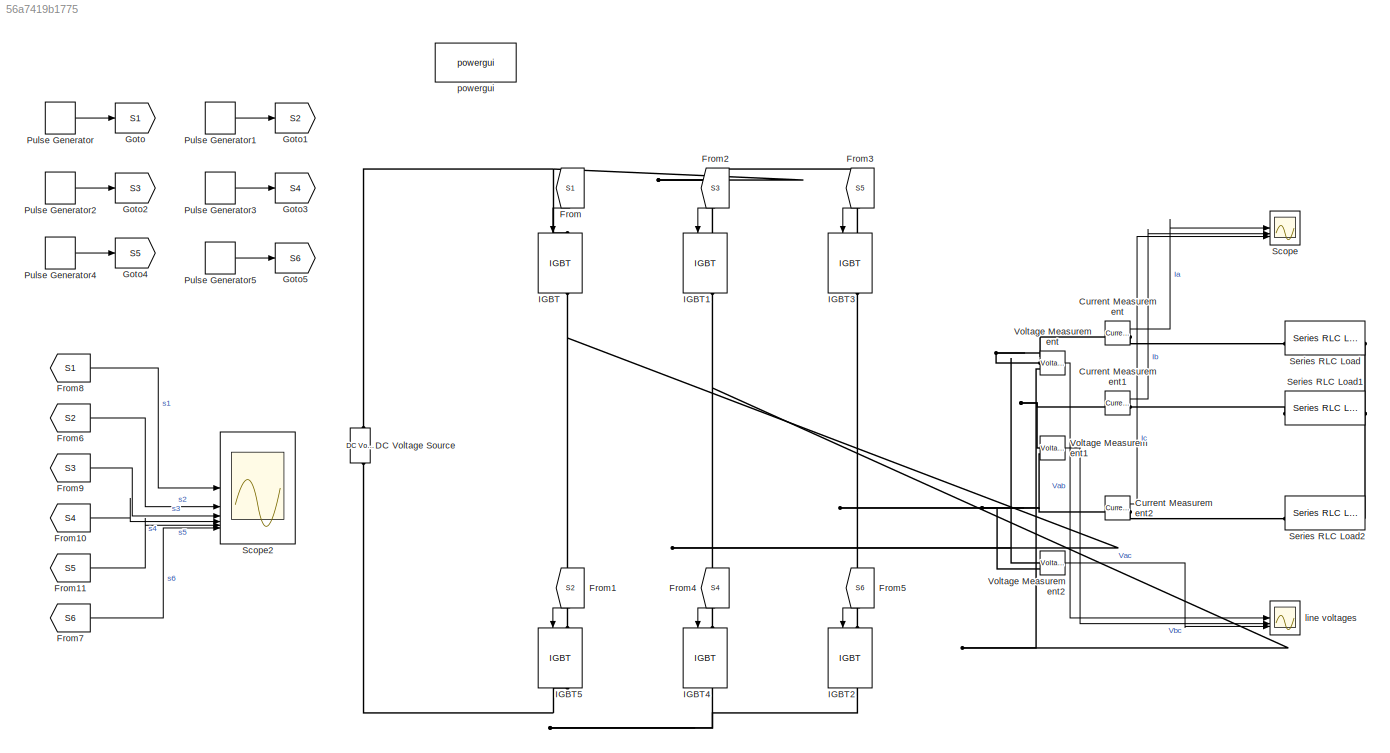
MODEL slx_56a7419b1775
KIND model
CONFIG AbsTol = auto
CONFIG EnableMultiTasking = off
CONFIG FixedStep = 10e-6
CONFIG MaxStep = auto
CONFIG MinStep = auto
CONFIG RelTol = 1e-3
CONFIG SampleTimeConstraint = Unconstrained
CONFIG SolverName = ode3
CONFIG StartTime = 0.0
CONFIG StopTime = 0.4
WORKSPACE source: mxarray member
WORKSPACE pulse_generator_period = 0.02
BLOCK [Reference] Current Measurement  REF=spsCurrentMeasurementLib/Current Measurement
  LibrarySourceBlock = sps_lib/Sensors and Measurements/Current Measurement
  SourceBlock = spsCurrentMeasurementLib/Current Measurement
  SourceType = Current Measurement
  UserDataPersistent = on
BLOCK [Reference] Current Measurement1  REF=spsCurrentMeasurementLib/Current Measurement
  LibrarySourceBlock = sps_lib/Sensors and Measurements/Current Measurement
  SourceBlock = spsCurrentMeasurementLib/Current Measurement
  SourceType = Current Measurement
  UserDataPersistent = on
BLOCK [Reference] Current Measurement2  REF=spsCurrentMeasurementLib/Current Measurement
  LibrarySourceBlock = sps_lib/Sensors and Measurements/Current Measurement
  SourceBlock = spsCurrentMeasurementLib/Current Measurement
  SourceType = Current Measurement
  UserDataPersistent = on
BLOCK [Reference] DC Voltage Source  REF=spsDCVoltageSourceLib/DC Voltage Source
  LibrarySourceBlock = sps_lib/Sources/DC Voltage Source
  SourceBlock = spsDCVoltageSourceLib/DC Voltage Source
  SourceType = DC Voltage Source
BLOCK [From] From
  GotoTag = S1
  NameLocation = left
BLOCK [From] From1
  GotoTag = S2
  NameLocation = left
BLOCK [From] From10
  GotoTag = S4
BLOCK [From] From11
  GotoTag = S5
BLOCK [From] From2
  GotoTag = S3
  NameLocation = left
BLOCK [From] From3
  GotoTag = S5
  NameLocation = left
BLOCK [From] From4
  GotoTag = S4
  NameLocation = left
BLOCK [From] From5
  GotoTag = S6
  NameLocation = left
BLOCK [From] From6
  GotoTag = S2
BLOCK [From] From7
  GotoTag = S6
BLOCK [From] From8
  GotoTag = S1
BLOCK [From] From9
  GotoTag = S3
BLOCK [Goto] Goto
  GotoTag = S1
BLOCK [Goto] Goto1
  GotoTag = S2
BLOCK [Goto] Goto2
  GotoTag = S3
BLOCK [Goto] Goto3
  GotoTag = S4
BLOCK [Goto] Goto4
  GotoTag = S5
BLOCK [Goto] Goto5
  GotoTag = S6
BLOCK [Reference] IGBT  REF=spsIGBTLib/IGBT
  LibrarySourceBlock = sps_lib/Power Electronics/IGBT
  NameLocation = left
  SourceBlock = spsIGBTLib/IGBT
  SourceType = IGBT
BLOCK [Reference] IGBT1  REF=spsIGBTLib/IGBT
  LibrarySourceBlock = sps_lib/Power Electronics/IGBT
  NameLocation = left
  SourceBlock = spsIGBTLib/IGBT
  SourceType = IGBT
BLOCK [Reference] IGBT2  REF=spsIGBTLib/IGBT
  LibrarySourceBlock = sps_lib/Power Electronics/IGBT
  NameLocation = left
  SourceBlock = spsIGBTLib/IGBT
  SourceType = IGBT
BLOCK [Reference] IGBT3  REF=spsIGBTLib/IGBT
  LibrarySourceBlock = sps_lib/Power Electronics/IGBT
  NameLocation = left
  SourceBlock = spsIGBTLib/IGBT
  SourceType = IGBT
BLOCK [Reference] IGBT4  REF=spsIGBTLib/IGBT
  LibrarySourceBlock = sps_lib/Power Electronics/IGBT
  NameLocation = left
  SourceBlock = spsIGBTLib/IGBT
  SourceType = IGBT
BLOCK [Reference] IGBT5  REF=spsIGBTLib/IGBT
  LibrarySourceBlock = sps_lib/Power Electronics/IGBT
  NameLocation = left
  SourceBlock = spsIGBTLib/IGBT
  SourceType = IGBT
BLOCK [DiscretePulseGenerator] Pulse Generator
  Period = pulse_generator_period
  PulseType = Time based
  PulseWidth = 50
BLOCK [DiscretePulseGenerator] Pulse Generator1
  Period = pulse_generator_period
  PhaseDelay = 13.3e-3
  PulseType = Time based
  PulseWidth = 50
BLOCK [DiscretePulseGenerator] Pulse Generator2
  Period = pulse_generator_period
  PhaseDelay = 6.67e-3
  PulseType = Time based
  PulseWidth = 50
BLOCK [DiscretePulseGenerator] Pulse Generator3
  Period = pulse_generator_period
  PulseType = Time based
  PulseWidth = 50
BLOCK [DiscretePulseGenerator] Pulse Generator4
  Period = pulse_generator_period
  PhaseDelay = 13.3e-3
  PulseType = Time based
  PulseWidth = 50
BLOCK [DiscretePulseGenerator] Pulse Generator5
  Period = pulse_generator_period
  PhaseDelay = 6.67e-3
  PulseType = Time based
  PulseWidth = 50
BLOCK [Scope] Scope
  Floating = off
  NumInputPorts = 3
  ScopeSpecificationString = Simulink.scopes.TimeScopeBlockCfg('CurrentConfiguration', extmgr.ConfigurationSet(extmgr.Configuration('Core','General UI',true),extmgr.Configuration('Core','Source UI',true),extmgr.Configuration('Sources','WiredSimulink',true),extmgr.Configuration('Visuals','Time Domain',true,'SerializedDisplays',{struct('MinYLimReal','-2.61247','MaxYLimReal','2.61247','YLabelReal','','MinYLimMag','0.00000','MaxY...<+3346ch>
BLOCK [Scope] Scope2
  Floating = off
  NumInputPorts = 6
  ScopeSpecificationString = Simulink.scopes.TimeScopeBlockCfg('CurrentConfiguration', extmgr.ConfigurationSet(extmgr.Configuration('Core','General UI',true),extmgr.Configuration('Core','Source UI',true),extmgr.Configuration('Sources','WiredSimulink',true,'DataLoggingVariableName','ScopeData2'),extmgr.Configuration('Visuals','Time Domain',true,'SerializedDisplays',{struct('MinYLimReal','-0.125','MaxYLimReal','1.125','YLabelRe...<+5532ch>
BLOCK [Reference] Series RLC Load  REF=spsSeriesRLCLoadLib/Series RLC Load
  AttributesFormatString = \n
  LibrarySourceBlock = sps_lib/Passives/Series RLC Load
  SourceBlock = spsSeriesRLCLoadLib/Series RLC Load
  SourceType = Series RLC Load
BLOCK [Reference] Series RLC Load1  REF=spsSeriesRLCLoadLib/Series RLC Load
  AttributesFormatString = \n
  LibrarySourceBlock = sps_lib/Passives/Series RLC Load
  SourceBlock = spsSeriesRLCLoadLib/Series RLC Load
  SourceType = Series RLC Load
BLOCK [Reference] Series RLC Load2  REF=spsSeriesRLCLoadLib/Series RLC Load
  AttributesFormatString = \n
  LibrarySourceBlock = sps_lib/Passives/Series RLC Load
  SourceBlock = spsSeriesRLCLoadLib/Series RLC Load
  SourceType = Series RLC Load
BLOCK [Reference] Voltage Measurement  REF=spsVoltageMeasurementLib/Voltage Measurement
  LibrarySourceBlock = sps_lib/Sensors and Measurements/Voltage Measurement
  SourceBlock = spsVoltageMeasurementLib/Voltage Measurement
  SourceType = Voltage Measurement
  UserDataPersistent = on
BLOCK [Reference] Voltage Measurement1  REF=spsVoltageMeasurementLib/Voltage Measurement
  LibrarySourceBlock = sps_lib/Sensors and Measurements/Voltage Measurement
  SourceBlock = spsVoltageMeasurementLib/Voltage Measurement
  SourceType = Voltage Measurement
  UserDataPersistent = on
BLOCK [Reference] Voltage Measurement2  REF=spsVoltageMeasurementLib/Voltage Measurement
  LibrarySourceBlock = sps_lib/Sensors and Measurements/Voltage Measurement
  SourceBlock = spsVoltageMeasurementLib/Voltage Measurement
  SourceType = Voltage Measurement
  UserDataPersistent = on
BLOCK [Scope] line voltages
  Floating = off
  NumInputPorts = 3
  ScopeSpecificationString = Simulink.scopes.TimeScopeBlockCfg('CurrentConfiguration', extmgr.ConfigurationSet(extmgr.Configuration('Core','General UI',true),extmgr.Configuration('Core','Source UI',true),extmgr.Configuration('Sources','WiredSimulink',true,'DataLoggingVariableName','ScopeData1'),extmgr.Configuration('Visuals','Time Domain',true,'SerializedDisplays',{struct('MinYLimReal','-516.24483','MaxYLimReal','516.24483','...<+3321ch>
BLOCK [Reference] powergui  REF=sps_lib/powergui
  LibrarySourceBlock = sps_lib/powergui
  Priority = 1
  SourceBlock = sps_lib/powergui
  SourceType = PSB option menu block
LINE Current Measurement1:1 -> Scope:2
LINE Current Measurement2:1 -> Scope:3
LINE Current Measurement:1 -> Scope:1
LINE From10:1 -> Scope2:4
LINE From11:1 -> Scope2:5
LINE From1:1 -> IGBT5:1
LINE From2:1 -> IGBT1:1
LINE From3:1 -> IGBT3:1
LINE From4:1 -> IGBT4:1
LINE From5:1 -> IGBT2:1
LINE From6:1 -> Scope2:2
LINE From7:1 -> Scope2:6
LINE From8:1 -> Scope2:1
LINE From9:1 -> Scope2:3
LINE From:1 -> IGBT:1
LINE Pulse Generator1:1 -> Goto1:1
LINE Pulse Generator2:1 -> Goto2:1
LINE Pulse Generator3:1 -> Goto3:1
LINE Pulse Generator4:1 -> Goto4:1
LINE Pulse Generator5:1 -> Goto5:1
LINE Pulse Generator:1 -> Goto:1
LINE Voltage Measurement1:1 -> line voltages:2
LINE Voltage Measurement2:1 -> line voltages:3
LINE Voltage Measurement:1 -> line voltages:1
PNET net1: Current Measurement1:LConn1 -- IGBT1:RConn1 -- IGBT4:LConn1 -- Voltage Measurement1:LConn1 -- Voltage Measurement:LConn2
PLINE Current Measurement1:RConn1 -- Series RLC Load1:LConn1
PNET net2: Current Measurement2:LConn1 -- IGBT2:LConn1 -- IGBT3:RConn1 -- Voltage Measurement1:LConn2 -- Voltage Measurement2:LConn2
PLINE Current Measurement2:RConn1 -- Series RLC Load2:LConn1
PNET net3: Current Measurement:LConn1 -- IGBT5:LConn1 -- IGBT:RConn1 -- Voltage Measurement2:LConn1 -- Voltage Measurement:LConn1
PLINE Current Measurement:RConn1 -- Series RLC Load:LConn1
PNET net4: DC Voltage Source:LConn1 -- IGBT2:RConn1 -- IGBT4:RConn1 -- IGBT5:RConn1
PNET net5: DC Voltage Source:RConn1 -- IGBT1:LConn1 -- IGBT3:LConn1 -- IGBT:LConn1
PNET net6: Series RLC Load1:RConn1 -- Series RLC Load2:RConn1 -- Series RLC Load:RConn1
note: PNET lines group multi-terminal physical nets as a canonical sorted terminal list (undirected conserving connections); 2-terminal nets keep the pairwise PLINE form
